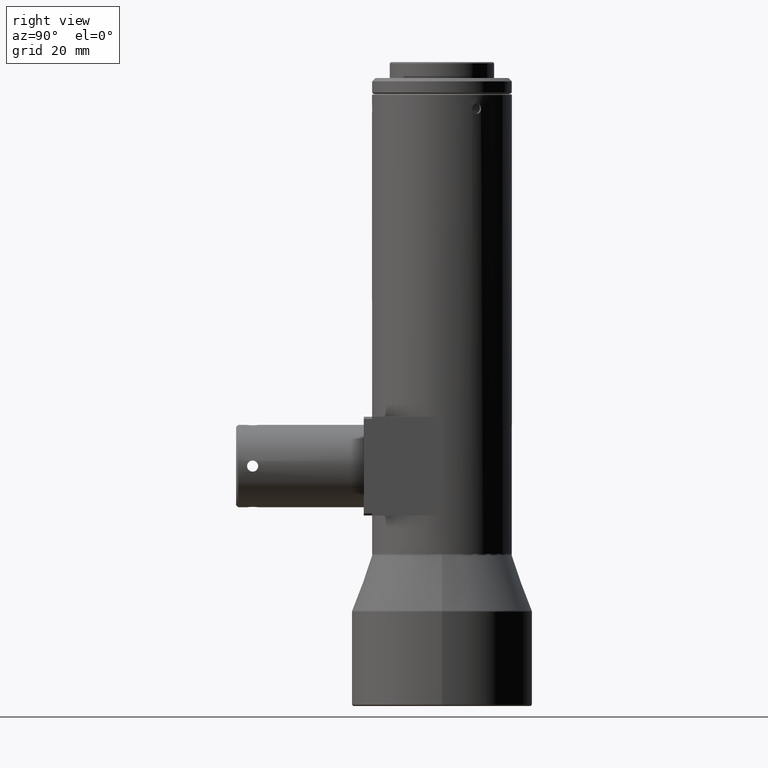
[diagram: clean part render]
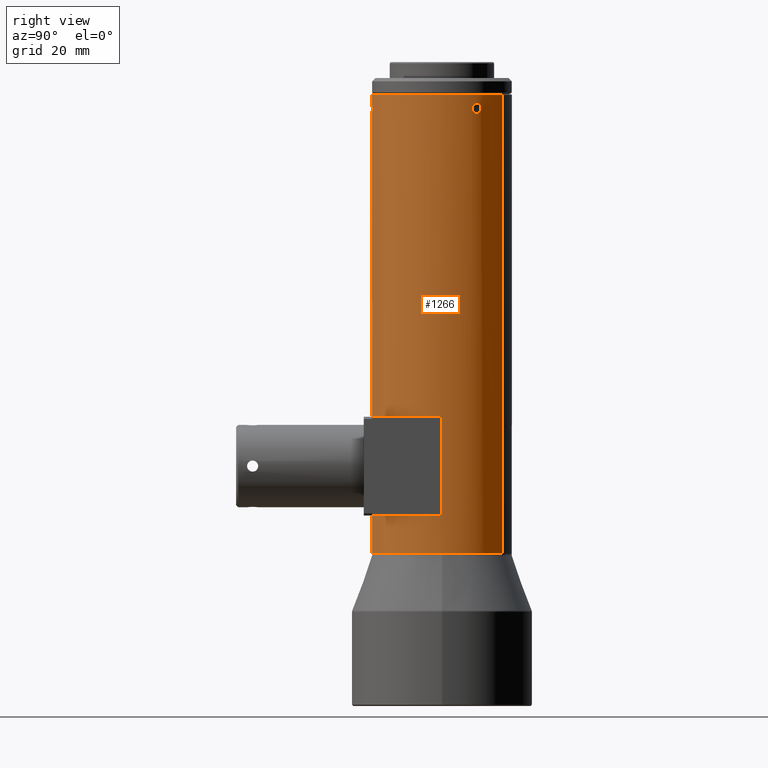
[diagram: same view with one face highlighted and labeled with its STEP entity id]
A machine part, right view. The second image highlights one B-rep face of the part: STEP entity #1266.
In plain terms, the highlighted cylindrical surface (partial cylindrical patch) has radius 17 mm, axis along (-0, -0, 1).
Its self-contained STEP definition (entity closure, byte-faithful):
#2 = AXIS2_PLACEMENT_3D ( 'NONE', #4422, #11, #1344 ) ;
#11 = DIRECTION ( 'NONE',  ( -3.330669073786789800E-016, -4.163336341914171800E-017, 1.000000000000000000 ) ) ;
#80 = CARTESIAN_POINT ( 'NONE',  ( 14.67075222811386900, 8.590474623352687200, 156.2514405686863800 ) ) ;
#96 = EDGE_LOOP ( 'NONE', ( #2298, #3875 ) ) ;
#104 = CARTESIAN_POINT ( 'NONE',  ( 14.35928235494369100, 9.100309391664980700, 155.9961592580183700 ) ) ;
#124 = CARTESIAN_POINT ( 'NONE',  ( 15.33349658310222500, 7.340564183766379500, 155.0013085027103700 ) ) ;
#165 = CARTESIAN_POINT ( 'NONE',  ( 14.46947707148147100, 8.924123349188787900, 156.1250520773666000 ) ) ;
#184 = CARTESIAN_POINT ( 'NONE',  ( 15.11872041612059200, 7.774185221362603900, 154.0005670907258400 ) ) ;
#187 = DIRECTION ( 'NONE',  ( 7.861355739480307100E-016, -5.318304654131179000E-016, 1.000000000000000000 ) ) ;
#188 = CARTESIAN_POINT ( 'NONE',  ( -1.309633230299139100, -16.94947966169164400, 155.0013085027103700 ) ) ;
#203 = CARTESIAN_POINT ( 'NONE',  ( -1.151787475759334300, -16.96105360630146600, 154.3714993854814800 ) ) ;
#204 = ORIENTED_EDGE ( 'NONE', *, *, #439, .F. ) ;
#209 = CARTESIAN_POINT ( 'NONE',  ( -8.551738191660909600, -14.69243934482250000, 46.79763548341931300 ) ) ;
#216 = CARTESIAN_POINT ( 'NONE',  ( 14.91238507646743400, 8.163559559592430400, 153.7836453767427500 ) ) ;
#219 = CIRCLE ( 'NONE', #4857, 17.00000000000000000 ) ;
#239 = CARTESIAN_POINT ( 'NONE',  ( 15.33349658310222500, 7.340564183766379500, 155.0013085027103700 ) ) ;
#244 = CARTESIAN_POINT ( 'NONE',  ( -0.6890662668601587000, -16.98670424278171300, 153.9089199696831800 ) ) ;
#274 = CARTESIAN_POINT ( 'NONE',  ( 0.9389479420074626800, -16.97444338458525000, 155.7705818722793700 ) ) ;
#296 = AXIS2_PLACEMENT_3D ( 'NONE', #3773, #2956, #2075 ) ;
#352 = ORIENTED_EDGE ( 'NONE', *, *, #914, .T. ) ;
#425 = EDGE_CURVE ( 'NONE', #3621, #4136, #4053, .T. ) ;
#439 = EDGE_CURVE ( 'NONE', #4704, #2280, #3782, .T. ) ;
#448 = ORIENTED_EDGE ( 'NONE', *, *, #425, .F. ) ;
#465 = CARTESIAN_POINT ( 'NONE',  ( 15.33349658310222500, 7.340564183766379500, 155.0013085027103700 ) ) ;
#527 = FACE_BOUND ( 'NONE', #3554, .T. ) ;
#529 = DIRECTION ( 'NONE',  ( 7.935195319901151300E-016, -6.540723362686795100E-016, 1.000000000000000000 ) ) ;
#561 = CARTESIAN_POINT ( 'NONE',  ( 15.05609319460992200, 7.895374218481689100, 156.0928807274217700 ) ) ;
#602 = CARTESIAN_POINT ( 'NONE',  ( 14.17929545249108800, 9.378246157153686400, 155.6313020872525800 ) ) ;
#604 = CARTESIAN_POINT ( 'NONE',  ( 2.905942292634421600E-014, -2.312926583471729600E-014, 46.79763548341931300 ) ) ;
#620 = CARTESIAN_POINT ( 'NONE',  ( 14.83308560310899600, 8.306995827167268600, 153.7512500406161300 ) ) ;
#634 = B_SPLINE_CURVE_WITH_KNOTS ( 'NONE', 3,
 ( #5419, #1450, #3324, #4626, #5054, #2871, #2889, #2927, #4165, #620, #216, #1530, #184, #1492, #2912, #2461, #4184, #5036, #1554, #239 ),
 .UNSPECIFIED., .F., .F.,
 ( 4, 2, 2, 2, 2, 2, 2, 2, 2, 4 ),
 ( 0.0000000000000000000, 0.0004886735322580868000, 0.0009773470645161735900, 0.001466020596774260400, 0.001954694129032347200, 0.002443367661290434400, 0.002932041193548520800, 0.003420714725806607600, 0.003665051491935613700, 0.003909388258064619800 ),
 .UNSPECIFIED. ) ;
#670 = DIRECTION ( 'NONE',  ( -7.935195319901151300E-016, 6.540723362686795100E-016, -1.000000000000000000 ) ) ;
#681 = CARTESIAN_POINT ( 'NONE',  ( -0.2258059194167660900, -16.99930107033617300, 156.2511756310488500 ) ) ;
#752 = VERTEX_POINT ( 'NONE', #2465 ) ;
#754 = CARTESIAN_POINT ( 'NONE',  ( -1.276881704189184700, -16.95209332532717300, 155.3289291012809500 ) ) ;
#828 = EDGE_LOOP ( 'NONE', ( #2866, #352, #5281, #3512, #204, #4979, #1179, #448, #1867 ) ) ;
#914 = EDGE_CURVE ( 'NONE', #752, #1334, #219, .T. ) ;
#963 = CARTESIAN_POINT ( 'NONE',  ( 14.43159908947383300, 8.985186057824353900, 156.0867020985441200 ) ) ;
#983 = EDGE_CURVE ( 'NONE', #1341, #2280, #3074, .T. ) ;
#1065 = VECTOR ( 'NONE', #1709, 1000.000000000000000 ) ;
#1164 = CARTESIAN_POINT ( 'NONE',  ( -1.309633230299139100, -16.94947966169164400, 155.0013085027103700 ) ) ;
#1179 = ORIENTED_EDGE ( 'NONE', *, *, #3837, .F. ) ;
#1214 = CIRCLE ( 'NONE', #2138, 16.99999999999999600 ) ;
#1223 = VERTEX_POINT ( 'NONE', #465 ) ;
#1241 = ORIENTED_EDGE ( 'NONE', *, *, #4200, .T. ) ;
#1266 = ADVANCED_FACE ( 'NONE', ( #527, #2285, #3946 ), #3042, .T. ) ;
#1334 = VERTEX_POINT ( 'NONE', #1897 ) ;
#1341 = VERTEX_POINT ( 'NONE', #3205 ) ;
#1344 = DIRECTION ( 'NONE',  ( -0.5030434230388830500, -0.8642611379307316700, 0.0000000000000000000 ) ) ;
#1354 = VECTOR ( 'NONE', #4168, 1000.000000000000000 ) ;
#1361 = CARTESIAN_POINT ( 'NONE',  ( -8.551738191660934500, -14.69243934482252300, 158.3013085027108700 ) ) ;
#1401 = EDGE_CURVE ( 'NONE', #4736, #2078, #3214, .T. ) ;
#1421 = DIRECTION ( 'NONE',  ( -1.000000000000000000, 2.775557561562912900E-017, 8.163404592832035000E-016 ) ) ;
#1426 = EDGE_CURVE ( 'NONE', #1334, #1341, #4888, .T. ) ;
#1433 = CARTESIAN_POINT ( 'NONE',  ( 14.83472953319951100, 8.304096872628148800, 156.2511756310487400 ) ) ;
#1450 = CARTESIAN_POINT ( 'NONE',  ( 14.09112060951803600, 9.510011565083241100, 154.8360676773484400 ) ) ;
#1454 = CARTESIAN_POINT ( 'NONE',  ( 1.190351300886981300, -16.95827419817474900, 155.0013085027108800 ) ) ;
#1492 = CARTESIAN_POINT ( 'NONE',  ( 15.22419313238786400, 7.565553935081588600, 154.2339360041468400 ) ) ;
#1498 = CARTESIAN_POINT ( 'NONE',  ( -8.551738191660913200, -14.69243934482250500, 56.12130850271085300 ) ) ;
#1513 = CARTESIAN_POINT ( 'NONE',  ( -1.309633230290705700, -16.94947966169229400, 154.9197133775706400 ) ) ;
#1530 = CARTESIAN_POINT ( 'NONE',  ( 15.05545053425196900, 7.896603229398939700, 153.9089199696831500 ) ) ;
#1552 = EDGE_CURVE ( 'NONE', #2078, #4736, #2805, .T. ) ;
#1554 = CARTESIAN_POINT ( 'NONE',  ( 15.33349658309857100, 7.340564183774008100, 154.9197133775706400 ) ) ;
#1574 = CARTESIAN_POINT ( 'NONE',  ( -0.8290861729451909400, -16.98016230354237900, 155.9998875787279400 ) ) ;
#1615 = CARTESIAN_POINT ( 'NONE',  ( 1.190351300886981500, -16.95827419817475200, 155.1665112415162500 ) ) ;
#1709 = DIRECTION ( 'NONE',  ( -3.330669073786789800E-016, -4.163336341914171800E-017, 1.000000000000000000 ) ) ;
#1867 = ORIENTED_EDGE ( 'NONE', *, *, #2929, .F. ) ;
#1877 = CARTESIAN_POINT ( 'NONE',  ( 14.09112060951803400, 9.510011565083241100, 155.0013085027108800 ) ) ;
#1893 = CARTESIAN_POINT ( 'NONE',  ( 14.09112060951803100, 9.510011565083241100, 155.1665112415162200 ) ) ;
#1897 = CARTESIAN_POINT ( 'NONE',  ( 8.551738191661113900, 14.69243934482237400, 46.79763548341931300 ) ) ;
#1922 = CARTESIAN_POINT ( 'NONE',  ( 0.5692000227246009100, -16.99113464425173700, 153.9088744721812500 ) ) ;
#1935 = CARTESIAN_POINT ( 'NONE',  ( 8.551738191661089100, 14.69243934482236300, 166.3013085027109000 ) ) ;
#1953 = CARTESIAN_POINT ( 'NONE',  ( -0.3863425743192638300, -16.99628408703301100, 153.7836453767428100 ) ) ;
#1999 = CARTESIAN_POINT ( 'NONE',  ( 5.549263439876817600E-014, -4.476355023321965400E-014, 80.12130850271084600 ) ) ;
#2031 = CARTESIAN_POINT ( 'NONE',  ( 0.4937789911627261700, -16.99299639797385800, 156.1250520773666300 ) ) ;
#2075 = DIRECTION ( 'NONE',  ( 0.5030434230388830500, 0.8642611379307316700, 0.0000000000000000000 ) ) ;
#2078 = VERTEX_POINT ( 'NONE', #2730 ) ;
#2113 = CARTESIAN_POINT ( 'NONE',  ( -0.3881056991347118800, -16.99624224059380500, 156.2184823655853700 ) ) ;
#2138 = AXIS2_PLACEMENT_3D ( 'NONE', #1999, #670, #3792 ) ;
#2280 = VERTEX_POINT ( 'NONE', #1361 ) ;
#2285 = FACE_BOUND ( 'NONE', #96, .T. ) ;
#2298 = ORIENTED_EDGE ( 'NONE', *, *, #1401, .T. ) ;
#2383 = CARTESIAN_POINT ( 'NONE',  ( 15.26485733234268200, 7.482514658877580200, 155.6297958156939700 ) ) ;
#2461 = CARTESIAN_POINT ( 'NONE',  ( 15.30580057470542800, 7.398206351787892200, 154.5986790370797300 ) ) ;
#2465 = CARTESIAN_POINT ( 'NONE',  ( 17.00000000000002500, -1.811663483735202100E-014, 46.79763548341929900 ) ) ;
#2477 = CARTESIAN_POINT ( 'NONE',  ( 17.00000000000005300, -4.523539501868533900E-014, 80.12130850271084600 ) ) ;
#2486 = CARTESIAN_POINT ( 'NONE',  ( 0.7014579380082410800, -16.98565799532740400, 155.9961592580182800 ) ) ;
#2495 = EDGE_CURVE ( 'NONE', #3269, #752, #5501, .T. ) ;
#2503 = CARTESIAN_POINT ( 'NONE',  ( -0.6904519517149924100, -16.98664629751908700, 156.0928807274217100 ) ) ;
#2676 = EDGE_CURVE ( 'NONE', #4679, #4704, #1214, .T. ) ;
#2713 = CARTESIAN_POINT ( 'NONE',  ( 3.644816563100541500E-014, -2.906581416277134300E-014, 56.12130850271085300 ) ) ;
#2730 = CARTESIAN_POINT ( 'NONE',  ( -1.309633230299139100, -16.94947966169164400, 155.0013085027103700 ) ) ;
#2759 = CARTESIAN_POINT ( 'NONE',  ( 0.7086598473660774600, -16.98561550085037200, 154.0019921928989400 ) ) ;
#2774 = CARTESIAN_POINT ( 'NONE',  ( 15.11979500172320500, 7.772071464074124400, 155.9998875787279600 ) ) ;
#2805 = B_SPLINE_CURVE_WITH_KNOTS ( 'NONE', 3,
 ( #1164, #5598, #754, #3826, #4262, #1574, #2503, #2113, #681, #4669, #5586, #2031, #5116, #2486, #2949, #274, #3400, #4281, #1615, #4708 ),
 .UNSPECIFIED., .F., .F.,
 ( 4, 2, 2, 2, 2, 2, 2, 2, 2, 4 ),
 ( 0.003909388258064615400, 0.004397949155370862800, 0.004886510052677111100, 0.005375070949983358500, 0.005863631847289605900, 0.006352192744595853300, 0.006596473193248993500, 0.006840753641902132800, 0.007329314539208471200, 0.007817875436514808800 ),
 .UNSPECIFIED. ) ;
#2866 = ORIENTED_EDGE ( 'NONE', *, *, #2495, .T. ) ;
#2871 = CARTESIAN_POINT ( 'NONE',  ( 14.35564459896813500, 9.106525180886100300, 154.0019921928989400 ) ) ;
#2889 = CARTESIAN_POINT ( 'NONE',  ( 14.43015422968158200, 8.988509001639933200, 153.9088744721812500 ) ) ;
#2894 = CARTESIAN_POINT ( 'NONE',  ( -1.060134664711843500, -16.96731497230931000, 154.2339360041468100 ) ) ;
#2912 = CARTESIAN_POINT ( 'NONE',  ( 15.26459703588642100, 7.483049589382262400, 154.3714993854814800 ) ) ;
#2914 = CARTESIAN_POINT ( 'NONE',  ( -1.245865644264890500, -16.95431529884734400, 154.5986790370797100 ) ) ;
#2927 = CARTESIAN_POINT ( 'NONE',  ( 14.58701214954969500, 8.731650572134062900, 153.7842014713458800 ) ) ;
#2929 = EDGE_CURVE ( 'NONE', #3269, #3621, #3931, .T. ) ;
#2949 = CARTESIAN_POINT ( 'NONE',  ( 0.7658286939891962900, -16.98283969997471800, 155.9434276185747600 ) ) ;
#2956 = DIRECTION ( 'NONE',  ( 3.330669073786789800E-016, 4.163336341914171800E-017, -1.000000000000000000 ) ) ;
#3042 = CYLINDRICAL_SURFACE ( 'NONE', #2, 17.00000000000000000 ) ;
#3074 = CIRCLE ( 'NONE', #296, 17.00000000000000000 ) ;
#3082 = VECTOR ( 'NONE', #4107, 1000.000000000000000 ) ;
#3205 = CARTESIAN_POINT ( 'NONE',  ( 8.551738191661089100, 14.69243934482236500, 158.3013085027108700 ) ) ;
#3214 = B_SPLINE_CURVE_WITH_KNOTS ( 'NONE', 3,
 ( #1454, #4480, #4553, #4074, #5379, #2759, #1922, #5002, #3766, #4593, #1953, #244, #5101, #2894, #203, #2914, #4614, #3328, #1513, #188 ),
 .UNSPECIFIED., .F., .F.,
 ( 4, 2, 2, 2, 2, 2, 2, 2, 2, 4 ),
 ( 0.0000000000000000000, 0.0004886735322580671700, 0.0009773470645161343400, 0.001466020596774201400, 0.001954694129032268700, 0.002443367661290336000, 0.002932041193548403700, 0.003420714725806471400, 0.003665051491935543000, 0.003909388258064615400 ),
 .UNSPECIFIED. ) ;
#3227 = CARTESIAN_POINT ( 'NONE',  ( 14.32465626158240800, 9.154646953928951400, 155.9434276185747900 ) ) ;
#3247 = CARTESIAN_POINT ( 'NONE',  ( 14.91323039879575200, 8.162011725492593700, 156.2184823655852900 ) ) ;
#3265 = CARTESIAN_POINT ( 'NONE',  ( 17.00000000000003600, -2.953765894823703500E-014, 56.12130850271083900 ) ) ;
#3269 = VERTEX_POINT ( 'NONE', #209 ) ;
#3291 = DIRECTION ( 'NONE',  ( 7.861355739480307100E-016, -5.318304654131179000E-016, 1.000000000000000000 ) ) ;
#3324 = CARTESIAN_POINT ( 'NONE',  ( 14.10945503119316400, 9.482997227923714700, 154.6739260053131800 ) ) ;
#3328 = CARTESIAN_POINT ( 'NONE',  ( -1.301458067867137000, -16.95011692426827600, 154.8368385735545900 ) ) ;
#3374 = CARTESIAN_POINT ( 'NONE',  ( -8.551738191660916800, -14.69243934482251200, 80.12130850271084600 ) ) ;
#3400 = CARTESIAN_POINT ( 'NONE',  ( 1.032151688793444500, -16.96875314819933700, 155.6313020872525200 ) ) ;
#3512 = ORIENTED_EDGE ( 'NONE', *, *, #983, .T. ) ;
#3554 = EDGE_LOOP ( 'NONE', ( #4942, #1241 ) ) ;
#3621 = VERTEX_POINT ( 'NONE', #1498 ) ;
#3670 = CARTESIAN_POINT ( 'NONE',  ( 15.31938431915256200, 7.370234669208072900, 155.3289291012809800 ) ) ;
#3717 = LINE ( 'NONE', #3889, #5074 ) ;
#3766 = CARTESIAN_POINT ( 'NONE',  ( 0.1037649156241357600, -17.00046590608683400, 153.7513671258103900 ) ) ;
#3773 = CARTESIAN_POINT ( 'NONE',  ( 7.730471380486553000E-014, -7.481888570405292600E-014, 158.3013085027108700 ) ) ;
#3782 = LINE ( 'NONE', #4464, #3082 ) ;
#3792 = DIRECTION ( 'NONE',  ( 1.000000000000000000, -2.775557561562912900E-017, -8.163404592832035000E-016 ) ) ;
#3812 = DIRECTION ( 'NONE',  ( 7.935195319901151300E-016, -6.540723362686795100E-016, 1.000000000000000000 ) ) ;
#3826 = CARTESIAN_POINT ( 'NONE',  ( -1.152380887393794600, -16.96101156439275200, 155.6297958156939100 ) ) ;
#3837 = EDGE_CURVE ( 'NONE', #4136, #4679, #3717, .T. ) ;
#3875 = ORIENTED_EDGE ( 'NONE', *, *, #1552, .T. ) ;
#3889 = CARTESIAN_POINT ( 'NONE',  ( 17.00000000000003600, -2.953765894823703500E-014, 56.12130850271083900 ) ) ;
#3931 = LINE ( 'NONE', #4008, #1065 ) ;
#3946 = FACE_OUTER_BOUND ( 'NONE', #828, .T. ) ;
#4008 = CARTESIAN_POINT ( 'NONE',  ( -8.551738191660938100, -14.69243934482251400, 166.3013085027109000 ) ) ;
#4053 = CIRCLE ( 'NONE', #4130, 16.99999999999999600 ) ;
#4071 = CARTESIAN_POINT ( 'NONE',  ( 14.09112060951803400, 9.510011565083241100, 155.0013085027108800 ) ) ;
#4074 = CARTESIAN_POINT ( 'NONE',  ( 1.032229730454157400, -16.96874949681441800, 154.3711708154432600 ) ) ;
#4107 = DIRECTION ( 'NONE',  ( -3.330669073786789800E-016, -4.163336341914171800E-017, 1.000000000000000000 ) ) ;
#4128 = CARTESIAN_POINT ( 'NONE',  ( 15.33349658309865600, 7.340564183773831400, 155.1644611390707400 ) ) ;
#4130 = AXIS2_PLACEMENT_3D ( 'NONE', #2713, #529, #1421 ) ;
#4136 = VERTEX_POINT ( 'NONE', #3265 ) ;
#4149 = CARTESIAN_POINT ( 'NONE',  ( 14.58797099273866100, 8.730067548975229700, 156.2190664790824700 ) ) ;
#4165 = CARTESIAN_POINT ( 'NONE',  ( 14.67095289303037700, 8.590096005995350800, 153.7513671258104200 ) ) ;
#4168 = DIRECTION ( 'NONE',  ( -3.330669073786789800E-016, -4.163336341914171800E-017, 1.000000000000000000 ) ) ;
#4184 = CARTESIAN_POINT ( 'NONE',  ( 15.31607928111575000, 7.376853821471473600, 154.6766096197870600 ) ) ;
#4200 = EDGE_CURVE ( 'NONE', #1223, #5056, #4636, .T. ) ;
#4225 = EDGE_CURVE ( 'NONE', #5056, #1223, #634, .T. ) ;
#4262 = CARTESIAN_POINT ( 'NONE',  ( -1.059344466970103300, -16.96735350716516400, 155.7692645862191800 ) ) ;
#4281 = CARTESIAN_POINT ( 'NONE',  ( 1.157119817529839800, -16.96068967468846700, 155.3306348374589700 ) ) ;
#4346 = CARTESIAN_POINT ( 'NONE',  ( 1.190351300886981300, -16.95827419817474900, 155.0013085027108800 ) ) ;
#4422 = CARTESIAN_POINT ( 'NONE',  ( 7.464017854583610100E-014, -7.515195261140605400E-014, 166.3013085027109000 ) ) ;
#4464 = CARTESIAN_POINT ( 'NONE',  ( -8.551738191660938100, -14.69243934482251400, 166.3013085027109000 ) ) ;
#4480 = CARTESIAN_POINT ( 'NONE',  ( 1.190351300886981000, -16.95827419817475200, 154.8360676773484100 ) ) ;
#4511 = CARTESIAN_POINT ( 'NONE',  ( 14.23082521514781200, 9.300374462902096800, 155.7705818722793400 ) ) ;
#4532 = CARTESIAN_POINT ( 'NONE',  ( 14.10982821521972500, 9.482439994547368300, 155.3306348374589400 ) ) ;
#4553 = CARTESIAN_POINT ( 'NONE',  ( 1.157788987802871100, -16.96064510452935200, 154.6739260053132100 ) ) ;
#4593 = CARTESIAN_POINT ( 'NONE',  ( -0.2224733860962119200, -16.99932686238528100, 153.7512500406161300 ) ) ;
#4613 = DIRECTION ( 'NONE',  ( -1.000000000000000000, -1.665334536937734600E-016, 8.163404592832033000E-016 ) ) ;
#4614 = CARTESIAN_POINT ( 'NONE',  ( -1.269496831159154800, -16.95254065455851800, 154.6766096197870600 ) ) ;
#4626 = CARTESIAN_POINT ( 'NONE',  ( 14.17925326946862600, 9.378311917521957100, 154.3711708154433200 ) ) ;
#4636 = B_SPLINE_CURVE_WITH_KNOTS ( 'NONE', 3,
 ( #124, #4128, #3670, #2383, #5451, #2774, #561, #3247, #1433, #80, #4149, #165, #963, #104, #3227, #4511, #602, #4532, #1893, #4071 ),
 .UNSPECIFIED., .F., .F.,
 ( 4, 2, 2, 2, 2, 2, 2, 2, 2, 4 ),
 ( 0.003909388258064619800, 0.004397949155370884500, 0.004886510052677148400, 0.005375070949983414900, 0.005863631847289680500, 0.006352192744595947000, 0.006596473193249094100, 0.006840753641902241200, 0.007329314539208532800, 0.007817875436514824500 ),
 .UNSPECIFIED. ) ;
#4669 = CARTESIAN_POINT ( 'NONE',  ( 0.1041931403321458000, -17.00048143385015100, 156.2514405686863800 ) ) ;
#4679 = VERTEX_POINT ( 'NONE', #2477 ) ;
#4704 = VERTEX_POINT ( 'NONE', #3374 ) ;
#4708 = CARTESIAN_POINT ( 'NONE',  ( 1.190351300886981300, -16.95827419817474900, 155.0013085027108800 ) ) ;
#4736 = VERTEX_POINT ( 'NONE', #4346 ) ;
#4857 = AXIS2_PLACEMENT_3D ( 'NONE', #5430, #3291, #5461 ) ;
#4888 = LINE ( 'NONE', #1935, #1354 ) ;
#4942 = ORIENTED_EDGE ( 'NONE', *, *, #4225, .T. ) ;
#4979 = ORIENTED_EDGE ( 'NONE', *, *, #2676, .F. ) ;
#5002 = CARTESIAN_POINT ( 'NONE',  ( 0.2683251376622833300, -16.99854837288936000, 153.7842014713458200 ) ) ;
#5036 = CARTESIAN_POINT ( 'NONE',  ( 15.32996088746647200, 7.347962713400876900, 154.8368385735546200 ) ) ;
#5054 = CARTESIAN_POINT ( 'NONE',  ( 14.23061911290013800, 9.300688812424430900, 154.2325289617635900 ) ) ;
#5056 = VERTEX_POINT ( 'NONE', #1877 ) ;
#5074 = VECTOR ( 'NONE', #3812, 1000.000000000000000 ) ;
#5085 = AXIS2_PLACEMENT_3D ( 'NONE', #604, #187, #4613 ) ;
#5101 = CARTESIAN_POINT ( 'NONE',  ( -0.8267183126346230300, -16.98028856375620800, 154.0005670907258400 ) ) ;
#5116 = CARTESIAN_POINT ( 'NONE',  ( 0.5655998390688353700, -16.99072445762893200, 156.0867020985440900 ) ) ;
#5281 = ORIENTED_EDGE ( 'NONE', *, *, #1426, .T. ) ;
#5379 = CARTESIAN_POINT ( 'NONE',  ( 0.9393232278033120100, -16.97442206956415200, 154.2325289617635900 ) ) ;
#5419 = CARTESIAN_POINT ( 'NONE',  ( 14.09112060951803400, 9.510011565083241100, 155.0013085027108800 ) ) ;
#5430 = CARTESIAN_POINT ( 'NONE',  ( 2.905942292634421600E-014, -2.312926583471729600E-014, 46.79763548341931300 ) ) ;
#5451 = CARTESIAN_POINT ( 'NONE',  ( 15.22383140568110000, 7.566257533827880800, 155.7692645862192400 ) ) ;
#5461 = DIRECTION ( 'NONE',  ( -1.000000000000000000, 1.609823385706477200E-015, 8.163404592832033000E-016 ) ) ;
#5501 = CIRCLE ( 'NONE', #5085, 17.00000000000000000 ) ;
#5586 = CARTESIAN_POINT ( 'NONE',  ( 0.2664747777974776400, -16.99858724386984200, 156.2190664790824700 ) ) ;
#5598 = CARTESIAN_POINT ( 'NONE',  ( -1.309633230290901300, -16.94947966169227600, 155.1644611390707400 ) ) ;